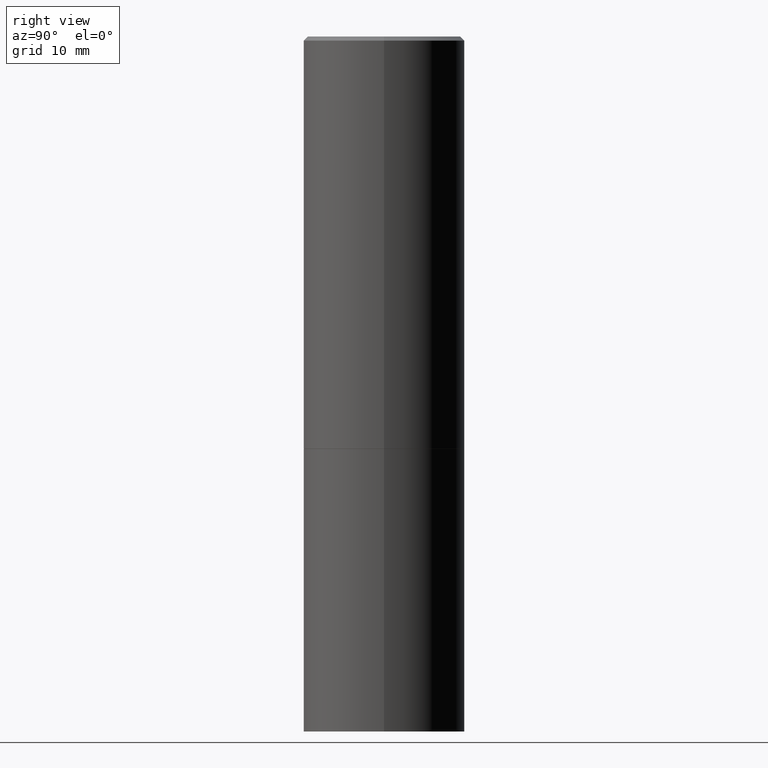
[diagram: clean part render]
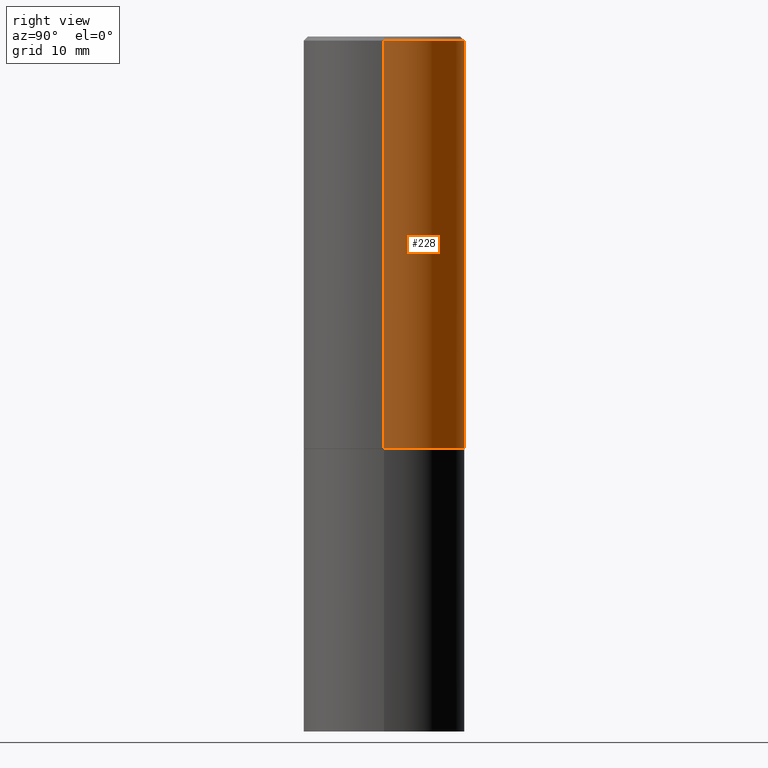
[diagram: same view with one face highlighted and labeled with its STEP entity id]
A machine part, right view. The second image highlights one B-rep face of the part: STEP entity #228.
In plain terms, the highlighted cylindrical surface (partial cylindrical patch) has radius 10 mm, axis along (-0, 0, 1).
Its self-contained STEP definition (entity closure, byte-faithful):
#4 = EDGE_CURVE ( 'NONE', #269, #94, #365, .T. ) ;
#10 = CARTESIAN_POINT ( 'NONE',  ( 4.890937612370283668E-31, -6.982962677686305168E-17, -0.02000000000000004205 ) ) ;
#13 = CYLINDRICAL_SURFACE ( 'NONE', #30, 0.3936999999999999389 ) ;
#20 = DIRECTION ( 'NONE',  ( -2.445468806185136877E-29, 3.491481338843145188E-15, 1.000000000000000000 ) ) ;
#30 = AXIS2_PLACEMENT_3D ( 'NONE', #267, #64, #213 ) ;
#34 = DIRECTION ( 'NONE',  ( -2.445468806185136597E-29, 3.491481338843145583E-15, 1.000000000000000000 ) ) ;
#36 = DIRECTION ( 'NONE',  ( 1.000000000000000000, -6.982962677686267499E-15, 0.000000000000000000 ) ) ;
#39 = CARTESIAN_POINT ( 'NONE',  ( -0.3936999999999999389, 2.797406750687513998E-15, -1.936584745033356455E-29 ) ) ;
#42 = CARTESIAN_POINT ( 'NONE',  ( -0.3936999999999998279, 2.679362779428219130E-15, -0.02000000000000004205 ) ) ;
#64 = DIRECTION ( 'NONE',  ( -2.445468806185136597E-29, 3.491481338843145583E-15, 1.000000000000000000 ) ) ;
#68 = CARTESIAN_POINT ( 'NONE',  ( -0.3937000000000000499, -7.408604380961292612E-16, -2.006800000000000139 ) ) ;
#74 = LINE ( 'NONE', #251, #282 ) ;
#91 = DIRECTION ( 'NONE',  ( 1.000000000000000000, -6.982962677686266711E-15, 0.000000000000000000 ) ) ;
#94 = VERTEX_POINT ( 'NONE', #42 ) ;
#109 = ORIENTED_EDGE ( 'NONE', *, *, #4, .F. ) ;
#151 = ORIENTED_EDGE ( 'NONE', *, *, #357, .F. ) ;
#161 = DIRECTION ( 'NONE',  ( -2.445468806185136597E-29, 3.491481338843145583E-15, 1.000000000000000000 ) ) ;
#176 = EDGE_CURVE ( 'NONE', #362, #199, #183, .T. ) ;
#183 = CIRCLE ( 'NONE', #265, 0.3937000000000000499 ) ;
#199 = VERTEX_POINT ( 'NONE', #68 ) ;
#202 = EDGE_LOOP ( 'NONE', ( #233, #311, #109, #151 ) ) ;
#213 = DIRECTION ( 'NONE',  ( 1.000000000000000000, -6.982962677686266711E-15, 4.876176775795935793E-29 ) ) ;
#217 = CARTESIAN_POINT ( 'NONE',  ( 0.3936999999999998279, -2.770807688499513762E-15, -0.02000000000000004205 ) ) ;
#219 = CARTESIAN_POINT ( 'NONE',  ( 0.3937000000000000499, -9.755897156995509197E-15, -2.006800000000000139 ) ) ;
#228 = ADVANCED_FACE ( 'NONE', ( #323 ), #13, .T. ) ;
#233 = ORIENTED_EDGE ( 'NONE', *, *, #176, .T. ) ;
#239 = EDGE_CURVE ( 'NONE', #199, #94, #268, .T. ) ;
#251 = CARTESIAN_POINT ( 'NONE',  ( 0.3936999999999999389, -2.749192406205082822E-15, 1.919750796630859611E-29 ) ) ;
#262 = DIRECTION ( 'NONE',  ( -2.445468806185136877E-29, 3.491481338843145188E-15, 1.000000000000000000 ) ) ;
#265 = AXIS2_PLACEMENT_3D ( 'NONE', #321, #161, #36 ) ;
#267 = CARTESIAN_POINT ( 'NONE',  ( 0.000000000000000000, 0.000000000000000000, 0.000000000000000000 ) ) ;
#268 = LINE ( 'NONE', #39, #328 ) ;
#269 = VERTEX_POINT ( 'NONE', #217 ) ;
#282 = VECTOR ( 'NONE', #20, 39.37007874015748143 ) ;
#311 = ORIENTED_EDGE ( 'NONE', *, *, #239, .T. ) ;
#321 = CARTESIAN_POINT ( 'NONE',  ( 4.907566800252332603E-29, -7.006704750790425192E-15, -2.006800000000000139 ) ) ;
#323 = FACE_OUTER_BOUND ( 'NONE', #202, .T. ) ;
#328 = VECTOR ( 'NONE', #262, 39.37007874015748143 ) ;
#349 = AXIS2_PLACEMENT_3D ( 'NONE', #10, #34, #91 ) ;
#357 = EDGE_CURVE ( 'NONE', #362, #269, #74, .T. ) ;
#362 = VERTEX_POINT ( 'NONE', #219 ) ;
#365 = CIRCLE ( 'NONE', #349, 0.3936999999999998279 ) ;